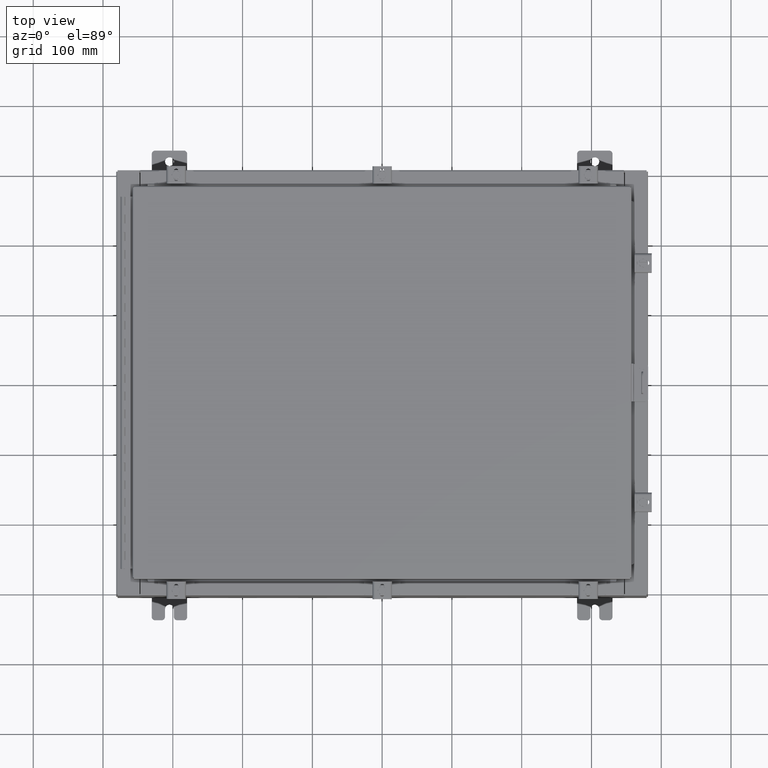
[diagram: clean part render]
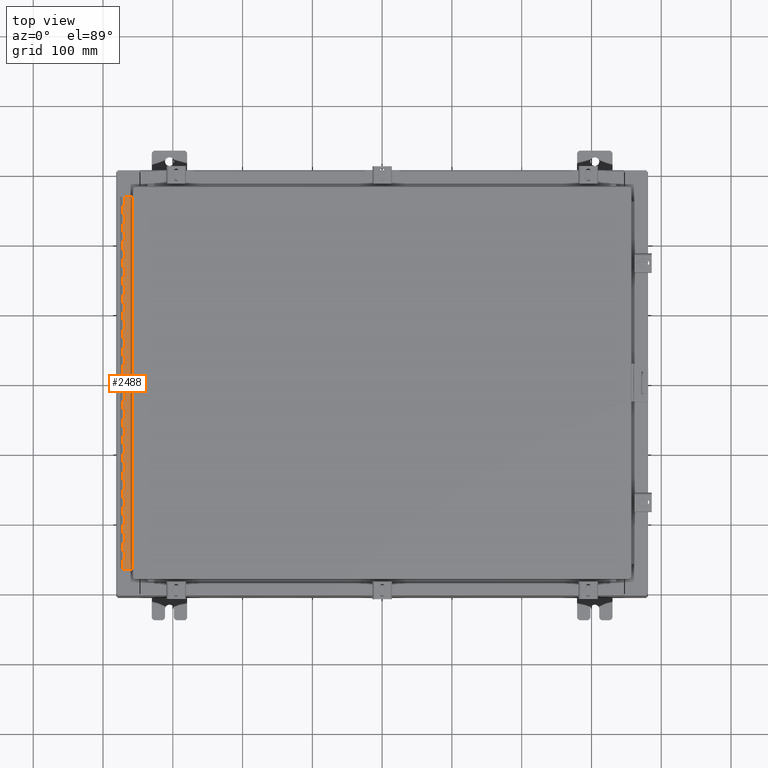
[diagram: same view with one face highlighted and labeled with its STEP entity id]
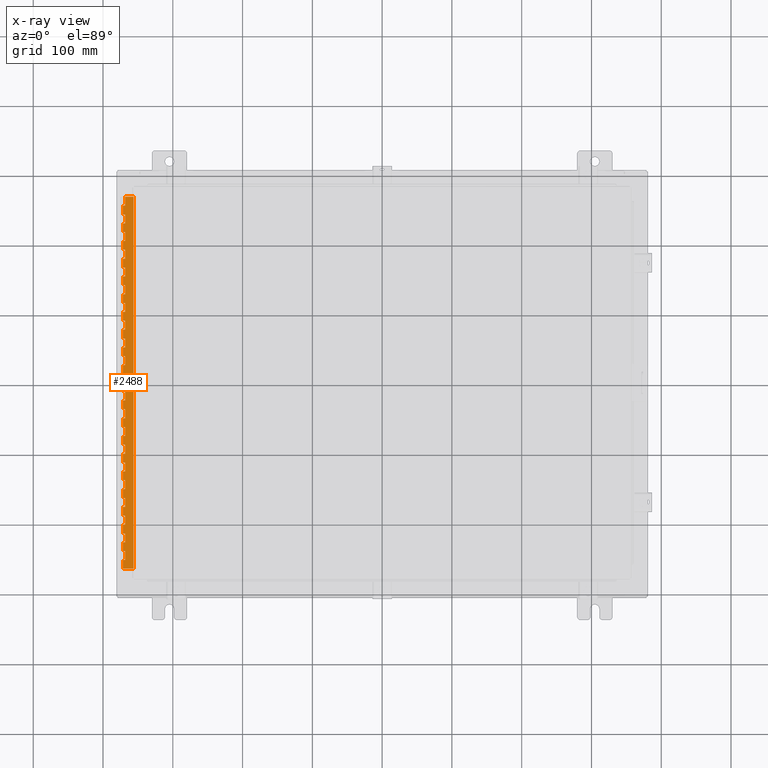
[diagram: x-ray of the same camera — body ghosted, the highlighted face saturated]
A machine part, top view. The second image highlights one B-rep face of the part: STEP entity #2488.
The next image is the same camera in x-ray: the body ghosted, the highlighted face saturated — about 0% of this face is hidden behind the body in this view.
In plain terms, the highlighted planar face has unit normal (-0, -0, 1).
Its self-contained STEP definition (entity closure, byte-faithful):
#34 = EDGE_CURVE ( 'NONE', #9324, #26235, #4822, .T. ) ;
#79 = DIRECTION ( 'NONE',  ( 1.000000000000000000, -3.369016658928438000E-015, -3.141885074075547100E-027 ) ) ;
#94 = VERTEX_POINT ( 'NONE', #604 ) ;
#155 = LINE ( 'NONE', #13174, #24912 ) ;
#216 = VERTEX_POINT ( 'NONE', #19144 ) ;
#232 = VERTEX_POINT ( 'NONE', #11434 ) ;
#234 = VERTEX_POINT ( 'NONE', #13741 ) ;
#254 = DIRECTION ( 'NONE',  ( 3.141885074075567200E-027, -3.229027700200096800E-028, -1.000000000000000000 ) ) ;
#404 = ORIENTED_EDGE ( 'NONE', *, *, #8666, .F. ) ;
#601 = ORIENTED_EDGE ( 'NONE', *, *, #1737, .F. ) ;
#604 = CARTESIAN_POINT ( 'NONE',  ( -0.6870000000000030500, 0.6755000000000095400, -17.99999999999997500 ) ) ;
#626 = VERTEX_POINT ( 'NONE', #18182 ) ;
#638 = VECTOR ( 'NONE', #22217, 39.37007874015748100 ) ;
#688 = EDGE_CURVE ( 'NONE', #9146, #26230, #20372, .T. ) ;
#714 = LINE ( 'NONE', #15290, #27082 ) ;
#715 = LINE ( 'NONE', #15933, #27083 ) ;
#734 = EDGE_CURVE ( 'NONE', #4343, #234, #18745, .T. ) ;
#797 = VECTOR ( 'NONE', #6239, 39.37007874015748100 ) ;
#811 = EDGE_CURVE ( 'NONE', #1770, #19089, #29885, .T. ) ;
#848 = CARTESIAN_POINT ( 'NONE',  ( -0.6870000000000030500, 0.5505000000000011000, -5.499999999999997300 ) ) ;
#867 = VERTEX_POINT ( 'NONE', #26609 ) ;
#927 = DIRECTION ( 'NONE',  ( 3.389037039080763700E-015, 1.000000000000000000, 3.228837380264321300E-028 ) ) ;
#952 = DIRECTION ( 'NONE',  ( -3.141885074075567200E-027, 3.229027700200096800E-028, 1.000000000000000000 ) ) ;
#1015 = CARTESIAN_POINT ( 'NONE',  ( -0.6869999999999976100, 0.8005000000000088700, -14.49999999999997700 ) ) ;
#1035 = VERTEX_POINT ( 'NONE', #11903 ) ;
#1115 = DIRECTION ( 'NONE',  ( -3.389037039080763700E-015, -1.000000000000000000, -3.228837380264321300E-028 ) ) ;
#1255 = VECTOR ( 'NONE', #16285, 39.37007874015748100 ) ;
#1258 = CARTESIAN_POINT ( 'NONE',  ( -0.6869999999999987200, 0.5505000000000011000, -7.999999999999989300 ) ) ;
#1400 = VERTEX_POINT ( 'NONE', #6035 ) ;
#1437 = EDGE_CURVE ( 'NONE', #24089, #5670, #9536, .T. ) ;
#1440 = EDGE_CURVE ( 'NONE', #14650, #1400, #16327, .T. ) ;
#1446 = LINE ( 'NONE', #32276, #638 ) ;
#1457 = EDGE_CURVE ( 'NONE', #29400, #13477, #20716, .T. ) ;
#1568 = LINE ( 'NONE', #14814, #21982 ) ;
#1610 = DIRECTION ( 'NONE',  ( -3.389037039080763700E-015, -1.000000000000000000, -3.228837380264321300E-028 ) ) ;
#1624 = ORIENTED_EDGE ( 'NONE', *, *, #28291, .F. ) ;
#1684 = VERTEX_POINT ( 'NONE', #25036 ) ;
#1697 = VECTOR ( 'NONE', #7319, 39.37007874015748100 ) ;
#1737 = EDGE_CURVE ( 'NONE', #16840, #10994, #20312, .T. ) ;
#1770 = VERTEX_POINT ( 'NONE', #4938 ) ;
#1781 = ORIENTED_EDGE ( 'NONE', *, *, #17635, .T. ) ;
#1808 = ORIENTED_EDGE ( 'NONE', *, *, #688, .F. ) ;
#1812 = CARTESIAN_POINT ( 'NONE',  ( -0.6869999999999987200, 0.5504999999999989900, -1.999999999999998400 ) ) ;
#1859 = CARTESIAN_POINT ( 'NONE',  ( -0.6869999999999987200, 0.8005000000000088700, -13.49999999999997900 ) ) ;
#1961 = VECTOR ( 'NONE', #27001, 39.37007874015748100 ) ;
#1971 = VECTOR ( 'NONE', #22402, 39.37007874015748100 ) ;
#1974 = CARTESIAN_POINT ( 'NONE',  ( -0.6869999999999976100, 0.8005000000000109800, -17.99999999999997500 ) ) ;
#2078 = CARTESIAN_POINT ( 'NONE',  ( -0.6869999999999976100, 0.8005000000000088700, -13.99999999999997700 ) ) ;
#2118 = EDGE_CURVE ( 'NONE', #8045, #18636, #15873, .T. ) ;
#2175 = ORIENTED_EDGE ( 'NONE', *, *, #21825, .F. ) ;
#2439 = VECTOR ( 'NONE', #15107, 39.37007874015748100 ) ;
#2488 = ADVANCED_FACE ( 'NONE', ( #19047 ), #15395, .T. ) ;
#2547 = VERTEX_POINT ( 'NONE', #10893 ) ;
#2750 = LINE ( 'NONE', #26872, #1961 ) ;
#2754 = VECTOR ( 'NONE', #927, 39.37007874015748100 ) ;
#2797 = LINE ( 'NONE', #6899, #22401 ) ;
#2821 = EDGE_CURVE ( 'NONE', #11160, #4188, #25314, .T. ) ;
#2841 = LINE ( 'NONE', #27069, #17271 ) ;
#2867 = CARTESIAN_POINT ( 'NONE',  ( -0.6870000000000041600, 0.5505000000000098700, -17.99999999999997500 ) ) ;
#2927 = VECTOR ( 'NONE', #1610, 39.37007874015748100 ) ;
#2970 = ORIENTED_EDGE ( 'NONE', *, *, #6097, .F. ) ;
#3030 = EDGE_CURVE ( 'NONE', #31472, #1770, #7721, .T. ) ;
#3083 = EDGE_CURVE ( 'NONE', #25766, #1684, #13717, .T. ) ;
#3180 = DIRECTION ( 'NONE',  ( 3.389037039080763700E-015, 1.000000000000000000, 3.228837380264321300E-028 ) ) ;
#3262 = LINE ( 'NONE', #9999, #9263 ) ;
#3383 = CARTESIAN_POINT ( 'NONE',  ( -0.6869999999999976100, 0.6755000000000095400, -20.99999999999995700 ) ) ;
#3389 = ORIENTED_EDGE ( 'NONE', *, *, #28763, .F. ) ;
#3396 = CARTESIAN_POINT ( 'NONE',  ( -0.6869999999999976100, 0.6755000000000095400, -20.99999999999995700 ) ) ;
#3445 = CARTESIAN_POINT ( 'NONE',  ( -0.6870000000000041600, 0.5505000000000011000, -8.499999999999989300 ) ) ;
#3474 = CARTESIAN_POINT ( 'NONE',  ( -0.6869999999999987200, 0.5505000000000011000, -5.999999999999990200 ) ) ;
#3475 = VERTEX_POINT ( 'NONE', #22207 ) ;
#3569 = CARTESIAN_POINT ( 'NONE',  ( -0.6869999999999987200, 0.5505000000000098700, -15.49999999999997900 ) ) ;
#3576 = EDGE_CURVE ( 'NONE', #1400, #11372, #8476, .T. ) ;
#3912 = VECTOR ( 'NONE', #32314, 39.37007874015748100 ) ;
#3915 = VECTOR ( 'NONE', #12338, 39.37007874015748100 ) ;
#3970 = CARTESIAN_POINT ( 'NONE',  ( -0.6869999999999976100, 0.8005000000000001000, -5.499999999999997300 ) ) ;
#4019 = EDGE_CURVE ( 'NONE', #19698, #29426, #24445, .T. ) ;
#4112 = CARTESIAN_POINT ( 'NONE',  ( -0.6869999999999998300, 0.5505000000000098700, -19.49999999999997900 ) ) ;
#4158 = EDGE_CURVE ( 'NONE', #10605, #8533, #32350, .T. ) ;
#4176 = CARTESIAN_POINT ( 'NONE',  ( -0.6869999999999987200, 0.5505000000000098700, -20.99999999999995700 ) ) ;
#4188 = VERTEX_POINT ( 'NONE', #24943 ) ;
#4343 = VERTEX_POINT ( 'NONE', #23045 ) ;
#4347 = CARTESIAN_POINT ( 'NONE',  ( -0.6870000000000030500, 0.5505000000000033200, -13.49999999999997900 ) ) ;
#4447 = DIRECTION ( 'NONE',  ( 3.389037039080763700E-015, 1.000000000000000000, 3.228837380264321300E-028 ) ) ;
#4493 = ORIENTED_EDGE ( 'NONE', *, *, #4019, .F. ) ;
#4704 = VERTEX_POINT ( 'NONE', #23115 ) ;
#4706 = LINE ( 'NONE', #18222, #16684 ) ;
#4790 = DIRECTION ( 'NONE',  ( -3.389037039080763700E-015, -1.000000000000000000, -3.228837380264321300E-028 ) ) ;
#4822 = LINE ( 'NONE', #28487, #11588 ) ;
#4831 = DIRECTION ( 'NONE',  ( 3.389037039080763700E-015, 1.000000000000000000, 3.228837380264321300E-028 ) ) ;
#4868 = LINE ( 'NONE', #8515, #18448 ) ;
#4892 = CARTESIAN_POINT ( 'NONE',  ( -0.6869999999999998300, 0.5505000000000098700, -19.99999999999995700 ) ) ;
#4898 = ORIENTED_EDGE ( 'NONE', *, *, #15754, .T. ) ;
#4906 = DIRECTION ( 'NONE',  ( -3.389037039080763700E-015, -1.000000000000000000, -3.228837380264321300E-028 ) ) ;
#4938 = CARTESIAN_POINT ( 'NONE',  ( -0.6869999999999987200, 0.5505000000000098700, -16.99999999999997900 ) ) ;
#4975 = ORIENTED_EDGE ( 'NONE', *, *, #8312, .F. ) ;
#4978 = LINE ( 'NONE', #23288, #31254 ) ;
#4997 = LINE ( 'NONE', #3569, #24557 ) ;
#5007 = VERTEX_POINT ( 'NONE', #22983 ) ;
#5025 = CARTESIAN_POINT ( 'NONE',  ( -0.6869999999999987200, 0.6755000000000095400, -19.49999999999997900 ) ) ;
#5042 = ORIENTED_EDGE ( 'NONE', *, *, #34, .T. ) ;
#5064 = CARTESIAN_POINT ( 'NONE',  ( -0.6869999999999987200, 0.5505000000000098700, -15.49999999999997900 ) ) ;
#5072 = VERTEX_POINT ( 'NONE', #28189 ) ;
#5168 = VECTOR ( 'NONE', #3180, 39.37007874015748100 ) ;
#5203 = VERTEX_POINT ( 'NONE', #5875 ) ;
#5245 = DIRECTION ( 'NONE',  ( 3.389037039080763700E-015, 1.000000000000000000, 3.228837380264321300E-028 ) ) ;
#5343 = DIRECTION ( 'NONE',  ( 3.141885074075567200E-027, -3.229027700200096800E-028, -1.000000000000000000 ) ) ;
#5432 = ORIENTED_EDGE ( 'NONE', *, *, #16286, .F. ) ;
#5468 = ORIENTED_EDGE ( 'NONE', *, *, #24196, .F. ) ;
#5503 = EDGE_CURVE ( 'NONE', #27172, #6936, #1568, .T. ) ;
#5504 = LINE ( 'NONE', #5829, #31802 ) ;
#5594 = VECTOR ( 'NONE', #9828, 39.37007874015748100 ) ;
#5630 = VECTOR ( 'NONE', #13880, 39.37007874015748100 ) ;
#5631 = DIRECTION ( 'NONE',  ( 3.141885074075567200E-027, -3.229027700200096800E-028, -1.000000000000000000 ) ) ;
#5639 = ORIENTED_EDGE ( 'NONE', *, *, #8580, .F. ) ;
#5649 = ORIENTED_EDGE ( 'NONE', *, *, #5503, .F. ) ;
#5670 = VERTEX_POINT ( 'NONE', #10327 ) ;
#5692 = DIRECTION ( 'NONE',  ( 3.141885074075567200E-027, -3.229027700200096800E-028, -1.000000000000000000 ) ) ;
#5703 = VECTOR ( 'NONE', #13069, 39.37007874015748100 ) ;
#5799 = LINE ( 'NONE', #12096, #18602 ) ;
#5822 = ORIENTED_EDGE ( 'NONE', *, *, #21413, .F. ) ;
#5829 = CARTESIAN_POINT ( 'NONE',  ( -0.6870000000000019400, 0.8005000000000109800, -17.49999999999997500 ) ) ;
#5875 = CARTESIAN_POINT ( 'NONE',  ( -0.6869999999999987200, 0.6755000000000095400, -14.49999999999997700 ) ) ;
#5907 = CARTESIAN_POINT ( 'NONE',  ( -0.6870000000000030500, 0.5505000000000011000, -3.999999999999996900 ) ) ;
#5913 = EDGE_CURVE ( 'NONE', #5203, #626, #31060, .T. ) ;
#5965 = DIRECTION ( 'NONE',  ( -3.389037039080763700E-015, -1.000000000000000000, -3.228837380264321300E-028 ) ) ;
#6027 = ORIENTED_EDGE ( 'NONE', *, *, #29920, .T. ) ;
#6035 = CARTESIAN_POINT ( 'NONE',  ( -0.6870000000000030500, 0.5505000000000033200, -13.99999999999997700 ) ) ;
#6097 = EDGE_CURVE ( 'NONE', #11986, #31472, #6728, .T. ) ;
#6150 = DIRECTION ( 'NONE',  ( 3.389037039080763700E-015, 1.000000000000000000, 3.228837380264321300E-028 ) ) ;
#6205 = ORIENTED_EDGE ( 'NONE', *, *, #15177, .T. ) ;
#6227 = CARTESIAN_POINT ( 'NONE',  ( -0.6869999999999998300, 0.6755000000000007700, -4.499999999999998200 ) ) ;
#6239 = DIRECTION ( 'NONE',  ( 3.389037039080763700E-015, 1.000000000000000000, 3.228837380264321300E-028 ) ) ;
#6276 = DIRECTION ( 'NONE',  ( -3.141885074075567200E-027, 3.229027700200096800E-028, 1.000000000000000000 ) ) ;
#6378 = CARTESIAN_POINT ( 'NONE',  ( -0.6869999999999987200, 0.5505000000000098700, -20.49999999999995700 ) ) ;
#6420 = DIRECTION ( 'NONE',  ( -3.141885074075567200E-027, 3.229027700200096800E-028, 1.000000000000000000 ) ) ;
#6422 = VERTEX_POINT ( 'NONE', #27720 ) ;
#6601 = VERTEX_POINT ( 'NONE', #15661 ) ;
#6712 = LINE ( 'NONE', #13253, #11113 ) ;
#6728 = LINE ( 'NONE', #27243, #19547 ) ;
#6832 = CARTESIAN_POINT ( 'NONE',  ( -0.6870000000000030500, 0.5504999999999989900, -0.4999999999999973900 ) ) ;
#6834 = CARTESIAN_POINT ( 'NONE',  ( -0.6870000000000030500, 0.8005000000000001000, -6.999999999999990200 ) ) ;
#6899 = CARTESIAN_POINT ( 'NONE',  ( -0.6869999999999987200, 0.8005000000000001000, -3.999999999999996900 ) ) ;
#6934 = LINE ( 'NONE', #8839, #25716 ) ;
#6936 = VERTEX_POINT ( 'NONE', #14532 ) ;
#6959 = DIRECTION ( 'NONE',  ( -3.389037039080763700E-015, -1.000000000000000000, -3.228837380264321300E-028 ) ) ;
#7063 = CARTESIAN_POINT ( 'NONE',  ( -0.6870000000000030500, 0.5505000000000011000, -5.000000000000000000 ) ) ;
#7145 = EDGE_CURVE ( 'NONE', #626, #24089, #17512, .T. ) ;
#7240 = LINE ( 'NONE', #26034, #13246 ) ;
#7248 = ORIENTED_EDGE ( 'NONE', *, *, #7145, .F. ) ;
#7262 = CARTESIAN_POINT ( 'NONE',  ( -0.6870000000000074900, -0.6245000000000002800, -20.99999999999995700 ) ) ;
#7319 = DIRECTION ( 'NONE',  ( 3.389037039080763700E-015, 1.000000000000000000, 3.228837380264321300E-028 ) ) ;
#7358 = VERTEX_POINT ( 'NONE', #16989 ) ;
#7373 = CARTESIAN_POINT ( 'NONE',  ( -0.6869999999999976100, 0.8005000000000001000, -5.999999999999990200 ) ) ;
#7423 = DIRECTION ( 'NONE',  ( 3.389037039080763700E-015, 1.000000000000000000, 3.228837380264321300E-028 ) ) ;
#7533 = LINE ( 'NONE', #8835, #33032 ) ;
#7623 = CARTESIAN_POINT ( 'NONE',  ( -0.6869999999999987200, 0.5505000000000011000, -3.000000000000001800 ) ) ;
#7689 = EDGE_CURVE ( 'NONE', #20051, #94, #28582, .T. ) ;
#7721 = LINE ( 'NONE', #30603, #21319 ) ;
#7917 = CARTESIAN_POINT ( 'NONE',  ( -0.6870000000000030500, 0.5505000000000011000, -4.499999999999998200 ) ) ;
#7936 = VECTOR ( 'NONE', #32191, 39.37007874015748100 ) ;
#7941 = CARTESIAN_POINT ( 'NONE',  ( -0.6869999999999987200, 0.5505000000000011000, -11.49999999999997700 ) ) ;
#8045 = VERTEX_POINT ( 'NONE', #23925 ) ;
#8121 = DIRECTION ( 'NONE',  ( -3.141885074075567200E-027, 3.229027700200096800E-028, 1.000000000000000000 ) ) ;
#8173 = ORIENTED_EDGE ( 'NONE', *, *, #9710, .F. ) ;
#8200 = CARTESIAN_POINT ( 'NONE',  ( -0.6870000000000030500, 0.8005000000000088700, -10.99999999999997700 ) ) ;
#8220 = DIRECTION ( 'NONE',  ( -3.141885074075567200E-027, 3.229027700200096800E-028, 1.000000000000000000 ) ) ;
#8244 = VERTEX_POINT ( 'NONE', #4176 ) ;
#8312 = EDGE_CURVE ( 'NONE', #32465, #4343, #5799, .T. ) ;
#8327 = DIRECTION ( 'NONE',  ( -3.389037039080763700E-015, -1.000000000000000000, -3.228837380264321300E-028 ) ) ;
#8378 = ORIENTED_EDGE ( 'NONE', *, *, #31934, .F. ) ;
#8476 = LINE ( 'NONE', #2078, #1697 ) ;
#8501 = CARTESIAN_POINT ( 'NONE',  ( -0.6870000000000030500, 0.5504999999999989900, -0.4999999999999973900 ) ) ;
#8515 = CARTESIAN_POINT ( 'NONE',  ( -0.6870000000000041600, 0.5505000000000011000, -3.499999999999999100 ) ) ;
#8533 = VERTEX_POINT ( 'NONE', #15451 ) ;
#8580 = EDGE_CURVE ( 'NONE', #1684, #27750, #12999, .T. ) ;
#8615 = CARTESIAN_POINT ( 'NONE',  ( -0.6870000000000041600, 0.5505000000000098700, -17.49999999999997500 ) ) ;
#8616 = VERTEX_POINT ( 'NONE', #13093 ) ;
#8666 = EDGE_CURVE ( 'NONE', #25545, #8244, #10585, .T. ) ;
#8694 = VECTOR ( 'NONE', #25150, 39.37007874015748100 ) ;
#8697 = VECTOR ( 'NONE', #1115, 39.37007874015748100 ) ;
#8727 = CARTESIAN_POINT ( 'NONE',  ( -0.6870000000000030500, 0.5505000000000033200, -13.49999999999997900 ) ) ;
#8820 = EDGE_CURVE ( 'NONE', #23798, #21541, #4997, .T. ) ;
#8835 = CARTESIAN_POINT ( 'NONE',  ( -0.6869999999999976100, 0.6755000000000095400, -20.99999999999995700 ) ) ;
#8839 = CARTESIAN_POINT ( 'NONE',  ( -0.6869999999999976100, 0.6755000000000095400, -20.99999999999995700 ) ) ;
#8861 = CARTESIAN_POINT ( 'NONE',  ( -0.6869999999999976100, 0.6755000000000007700, -6.499999999999988500 ) ) ;
#8903 = ORIENTED_EDGE ( 'NONE', *, *, #4158, .T. ) ;
#8935 = VERTEX_POINT ( 'NONE', #14197 ) ;
#9032 = VERTEX_POINT ( 'NONE', #24790 ) ;
#9146 = VERTEX_POINT ( 'NONE', #32735 ) ;
#9158 = EDGE_CURVE ( 'NONE', #18514, #9032, #30875, .T. ) ;
#9234 = LINE ( 'NONE', #30338, #2439 ) ;
#9263 = VECTOR ( 'NONE', #7423, 39.37007874015748100 ) ;
#9324 = VERTEX_POINT ( 'NONE', #25870 ) ;
#9390 = VECTOR ( 'NONE', #5343, 39.37007874015748100 ) ;
#9462 = ORIENTED_EDGE ( 'NONE', *, *, #25959, .F. ) ;
#9536 = LINE ( 'NONE', #24007, #15525 ) ;
#9583 = LINE ( 'NONE', #31497, #29080 ) ;
#9665 = VERTEX_POINT ( 'NONE', #14477 ) ;
#9676 = DIRECTION ( 'NONE',  ( 3.389037039080763700E-015, 1.000000000000000000, 3.228837380264321300E-028 ) ) ;
#9677 = CARTESIAN_POINT ( 'NONE',  ( -0.6870000000000030500, 0.8005000000000109800, -20.49999999999995700 ) ) ;
#9710 = EDGE_CURVE ( 'NONE', #18514, #25545, #20900, .T. ) ;
#9719 = LINE ( 'NONE', #17577, #22513 ) ;
#9742 = LINE ( 'NONE', #32151, #2927 ) ;
#9748 = ORIENTED_EDGE ( 'NONE', *, *, #19203, .T. ) ;
#9828 = DIRECTION ( 'NONE',  ( -3.141885074075567200E-027, 3.229027700200096800E-028, 1.000000000000000000 ) ) ;
#9929 = DIRECTION ( 'NONE',  ( -3.389037039080763700E-015, -1.000000000000000000, -3.228837380264321300E-028 ) ) ;
#9999 = CARTESIAN_POINT ( 'NONE',  ( -0.6869999999999976100, 0.8005000000000109800, -18.99999999999997900 ) ) ;
#10045 = EDGE_CURVE ( 'NONE', #27172, #31296, #28883, .T. ) ;
#10152 = EDGE_CURVE ( 'NONE', #29400, #10994, #6934, .T. ) ;
#10254 = CARTESIAN_POINT ( 'NONE',  ( -0.6870000000000074900, -0.6245000000000002800, -20.99999999999995700 ) ) ;
#10320 = CARTESIAN_POINT ( 'NONE',  ( -0.6870000000000030500, 0.8005000000000088700, -11.49999999999997700 ) ) ;
#10327 = CARTESIAN_POINT ( 'NONE',  ( -0.6869999999999976100, 0.6755000000000095400, -14.99999999999997700 ) ) ;
#10347 = VECTOR ( 'NONE', #15875, 39.37007874015748100 ) ;
#10575 = VERTEX_POINT ( 'NONE', #1812 ) ;
#10585 = LINE ( 'NONE', #21015, #17414 ) ;
#10591 = AXIS2_PLACEMENT_3D ( 'NONE', #10254, #79, #17982 ) ;
#10605 = VERTEX_POINT ( 'NONE', #12199 ) ;
#10632 = DIRECTION ( 'NONE',  ( -3.141885074075567200E-027, 3.229027700200096800E-028, 1.000000000000000000 ) ) ;
#10686 = EDGE_CURVE ( 'NONE', #19464, #24665, #9719, .T. ) ;
#10689 = VECTOR ( 'NONE', #31186, 39.37007874015748100 ) ;
#10702 = CARTESIAN_POINT ( 'NONE',  ( -0.6870000000000030500, 0.5505000000000098700, -18.99999999999997900 ) ) ;
#10709 = LINE ( 'NONE', #32572, #3915 ) ;
#10806 = EDGE_CURVE ( 'NONE', #8935, #27364, #32795, .T. ) ;
#10809 = VECTOR ( 'NONE', #10632, 39.37007874015748100 ) ;
#10893 = CARTESIAN_POINT ( 'NONE',  ( -0.6869999999999987200, 0.6755000000000095400, -18.99999999999997900 ) ) ;
#10994 = VERTEX_POINT ( 'NONE', #13504 ) ;
#11042 = ORIENTED_EDGE ( 'NONE', *, *, #22184, .F. ) ;
#11087 = EDGE_CURVE ( 'NONE', #17381, #232, #32379, .T. ) ;
#11101 = DIRECTION ( 'NONE',  ( -3.141885074075567200E-027, 3.229027700200096800E-028, 1.000000000000000000 ) ) ;
#11113 = VECTOR ( 'NONE', #8220, 39.37007874015748100 ) ;
#11160 = VERTEX_POINT ( 'NONE', #26852 ) ;
#11311 = VECTOR ( 'NONE', #5965, 39.37007874015748100 ) ;
#11372 = VERTEX_POINT ( 'NONE', #22672 ) ;
#11434 = CARTESIAN_POINT ( 'NONE',  ( -0.6870000000000030500, 0.6755000000000095400, -12.99999999999997700 ) ) ;
#11458 = VERTEX_POINT ( 'NONE', #4892 ) ;
#11478 = CARTESIAN_POINT ( 'NONE',  ( -0.6869999999999998300, 0.07550000000000989300, -20.99999999999995700 ) ) ;
#11494 = LINE ( 'NONE', #17139, #3912 ) ;
#11576 = LINE ( 'NONE', #3970, #23547 ) ;
#11588 = VECTOR ( 'NONE', #20181, 39.37007874015748100 ) ;
#11608 = LINE ( 'NONE', #25901, #10809 ) ;
#11630 = CARTESIAN_POINT ( 'NONE',  ( -0.6869999999999976100, 0.8005000000000001000, -5.000000000000000000 ) ) ;
#11777 = EDGE_CURVE ( 'NONE', #27643, #19698, #2841, .T. ) ;
#11855 = LINE ( 'NONE', #22669, #17874 ) ;
#11903 = CARTESIAN_POINT ( 'NONE',  ( -0.6869999999999987200, 0.5504999999999989900, -1.500000000000000900 ) ) ;
#11958 = EDGE_CURVE ( 'NONE', #27750, #27274, #17660, .T. ) ;
#11986 = VERTEX_POINT ( 'NONE', #16560 ) ;
#12096 = CARTESIAN_POINT ( 'NONE',  ( -0.6869999999999998300, 0.5505000000000011000, -10.49999999999997900 ) ) ;
#12129 = ORIENTED_EDGE ( 'NONE', *, *, #9158, .T. ) ;
#12169 = VERTEX_POINT ( 'NONE', #17348 ) ;
#12199 = CARTESIAN_POINT ( 'NONE',  ( -0.6870000000000030500, 0.6755000000000007700, -3.499999999999999100 ) ) ;
#12230 = ORIENTED_EDGE ( 'NONE', *, *, #24519, .F. ) ;
#12235 = ORIENTED_EDGE ( 'NONE', *, *, #18851, .T. ) ;
#12257 = ORIENTED_EDGE ( 'NONE', *, *, #27629, .F. ) ;
#12338 = DIRECTION ( 'NONE',  ( -3.141885074075567200E-027, 3.229027700200096800E-028, 1.000000000000000000 ) ) ;
#12504 = VECTOR ( 'NONE', #5245, 39.37007874015748100 ) ;
#12543 = CARTESIAN_POINT ( 'NONE',  ( -0.6870000000000030500, 0.8005000000000088700, -15.49999999999997900 ) ) ;
#12773 = LINE ( 'NONE', #21276, #11311 ) ;
#12791 = EDGE_CURVE ( 'NONE', #10605, #26896, #20773, .T. ) ;
#12840 = CARTESIAN_POINT ( 'NONE',  ( -0.6869999999999976100, 0.6755000000000095400, -20.99999999999995700 ) ) ;
#12961 = VERTEX_POINT ( 'NONE', #25848 ) ;
#12986 = ORIENTED_EDGE ( 'NONE', *, *, #10045, .T. ) ;
#12999 = LINE ( 'NONE', #7941, #18983 ) ;
#13059 = EDGE_CURVE ( 'NONE', #25658, #19464, #12773, .T. ) ;
#13069 = DIRECTION ( 'NONE',  ( 3.141885074075567200E-027, -3.229027700200096800E-028, -1.000000000000000000 ) ) ;
#13093 = CARTESIAN_POINT ( 'NONE',  ( -0.6869999999999998300, 0.5505000000000098700, -19.49999999999997900 ) ) ;
#13149 = DIRECTION ( 'NONE',  ( -3.141885074075567200E-027, 3.229027700200096800E-028, 1.000000000000000000 ) ) ;
#13174 = CARTESIAN_POINT ( 'NONE',  ( -0.6869999999999976100, 0.6755000000000095400, -20.99999999999995700 ) ) ;
#13225 = CARTESIAN_POINT ( 'NONE',  ( -0.6869999999999976100, 0.6755000000000095400, -15.49999999999997900 ) ) ;
#13246 = VECTOR ( 'NONE', #13337, 39.37007874015748100 ) ;
#13253 = CARTESIAN_POINT ( 'NONE',  ( -0.6869999999999976100, 0.6755000000000095400, -20.99999999999995700 ) ) ;
#13280 = ORIENTED_EDGE ( 'NONE', *, *, #21693, .F. ) ;
#13287 = CARTESIAN_POINT ( 'NONE',  ( -0.6869999999999987200, 0.5504999999999989900, -1.500000000000000900 ) ) ;
#13337 = DIRECTION ( 'NONE',  ( -3.141885074075567200E-027, 3.229027700200096800E-028, 1.000000000000000000 ) ) ;
#13477 = VERTEX_POINT ( 'NONE', #22166 ) ;
#13492 = VECTOR ( 'NONE', #4831, 39.37007874015748100 ) ;
#13504 = CARTESIAN_POINT ( 'NONE',  ( -0.6869999999999976100, 0.6755000000000007700, -5.999999999999990200 ) ) ;
#13563 = CARTESIAN_POINT ( 'NONE',  ( -0.6869999999999976100, 0.6755000000000095400, -20.99999999999995700 ) ) ;
#13637 = ORIENTED_EDGE ( 'NONE', *, *, #3083, .F. ) ;
#13668 = ORIENTED_EDGE ( 'NONE', *, *, #7689, .F. ) ;
#13717 = LINE ( 'NONE', #10320, #26467 ) ;
#13741 = CARTESIAN_POINT ( 'NONE',  ( -0.6869999999999976100, 0.6755000000000095400, -10.99999999999997700 ) ) ;
#13813 = CARTESIAN_POINT ( 'NONE',  ( -0.6869999999999987200, 0.6755000000000007700, 0.0000000000000000000 ) ) ;
#13880 = DIRECTION ( 'NONE',  ( 3.389037039080763700E-015, 1.000000000000000000, 3.228837380264321300E-028 ) ) ;
#13884 = CARTESIAN_POINT ( 'NONE',  ( -0.6869999999999976100, 0.8005000000000023200, -10.49999999999997900 ) ) ;
#13931 = EDGE_CURVE ( 'NONE', #21541, #216, #29664, .T. ) ;
#13971 = CARTESIAN_POINT ( 'NONE',  ( -0.6869999999999987200, 0.5505000000000011000, -7.499999999999989300 ) ) ;
#13985 = CARTESIAN_POINT ( 'NONE',  ( -0.6870000000000030500, 0.8005000000000001000, -6.499999999999988500 ) ) ;
#14126 = LINE ( 'NONE', #23201, #5703 ) ;
#14197 = CARTESIAN_POINT ( 'NONE',  ( -0.6870000000000041600, 0.5505000000000011000, -8.999999999999987600 ) ) ;
#14284 = EDGE_CURVE ( 'NONE', #13477, #11160, #14126, .T. ) ;
#14356 = CARTESIAN_POINT ( 'NONE',  ( -0.6870000000000030500, 0.6755000000000095400, -16.99999999999997900 ) ) ;
#14392 = LINE ( 'NONE', #11630, #15986 ) ;
#14394 = ORIENTED_EDGE ( 'NONE', *, *, #11087, .F. ) ;
#14422 = ORIENTED_EDGE ( 'NONE', *, *, #31780, .F. ) ;
#14477 = CARTESIAN_POINT ( 'NONE',  ( -0.6869999999999998300, 0.5504999999999989900, -0.9999999999999992200 ) ) ;
#14532 = CARTESIAN_POINT ( 'NONE',  ( -0.6870000000000030500, 0.5505000000000011000, -4.499999999999998200 ) ) ;
#14540 = ORIENTED_EDGE ( 'NONE', *, *, #1457, .F. ) ;
#14586 = ORIENTED_EDGE ( 'NONE', *, *, #11958, .F. ) ;
#14602 = ORIENTED_EDGE ( 'NONE', *, *, #12791, .F. ) ;
#14650 = VERTEX_POINT ( 'NONE', #4347 ) ;
#14696 = DIRECTION ( 'NONE',  ( -3.141885074075567200E-027, 3.229027700200096800E-028, 1.000000000000000000 ) ) ;
#14814 = CARTESIAN_POINT ( 'NONE',  ( -0.6869999999999976100, 0.8005000000000001000, -4.499999999999998200 ) ) ;
#14820 = ORIENTED_EDGE ( 'NONE', *, *, #22071, .T. ) ;
#15001 = ORIENTED_EDGE ( 'NONE', *, *, #2118, .F. ) ;
#15107 = DIRECTION ( 'NONE',  ( 3.141885074075567200E-027, -3.229027700200096800E-028, -1.000000000000000000 ) ) ;
#15119 = DIRECTION ( 'NONE',  ( -3.389037039080763700E-015, -1.000000000000000000, -3.228837380264321300E-028 ) ) ;
#15177 = EDGE_CURVE ( 'NONE', #12169, #27364, #7240, .T. ) ;
#15252 = EDGE_CURVE ( 'NONE', #26896, #18191, #4868, .T. ) ;
#15290 = CARTESIAN_POINT ( 'NONE',  ( -0.6869999999999976100, 0.8005000000000023200, -9.499999999999989300 ) ) ;
#15353 = DIRECTION ( 'NONE',  ( 3.141885074075567200E-027, -3.229027700200096800E-028, -1.000000000000000000 ) ) ;
#15367 = VECTOR ( 'NONE', #11101, 39.37007874015748100 ) ;
#15395 = PLANE ( 'NONE',  #10591 ) ;
#15408 = DIRECTION ( 'NONE',  ( -3.389037039080763700E-015, -1.000000000000000000, -3.228837380264321300E-028 ) ) ;
#15427 = DIRECTION ( 'NONE',  ( -3.141885074075567200E-027, 3.229027700200096800E-028, 1.000000000000000000 ) ) ;
#15451 = CARTESIAN_POINT ( 'NONE',  ( -0.6870000000000030500, 0.6755000000000007700, -3.000000000000001800 ) ) ;
#15457 = CARTESIAN_POINT ( 'NONE',  ( -0.6869999999999987200, 0.6755000000000007700, -5.000000000000000000 ) ) ;
#15525 = VECTOR ( 'NONE', #6150, 39.37007874015748100 ) ;
#15598 = LINE ( 'NONE', #21642, #22407 ) ;
#15620 = LINE ( 'NONE', #25678, #20814 ) ;
#15661 = CARTESIAN_POINT ( 'NONE',  ( -0.6869999999999987200, 0.6755000000000007700, -0.4999999999999973900 ) ) ;
#15677 = ORIENTED_EDGE ( 'NONE', *, *, #23907, .T. ) ;
#15696 = ORIENTED_EDGE ( 'NONE', *, *, #26711, .F. ) ;
#15754 = EDGE_CURVE ( 'NONE', #25658, #94, #11608, .T. ) ;
#15873 = LINE ( 'NONE', #28973, #21886 ) ;
#15875 = DIRECTION ( 'NONE',  ( 3.141885074075567200E-027, -3.229027700200096800E-028, -1.000000000000000000 ) ) ;
#15933 = CARTESIAN_POINT ( 'NONE',  ( -0.6869999999999976100, 0.6755000000000095400, -20.99999999999995700 ) ) ;
#15955 = CARTESIAN_POINT ( 'NONE',  ( -0.6869999999999987200, 0.5505000000000098700, -15.99999999999997900 ) ) ;
#15971 = CARTESIAN_POINT ( 'NONE',  ( -0.6870000000000030500, 0.5505000000000098700, -14.49999999999997700 ) ) ;
#15986 = VECTOR ( 'NONE', #16796, 39.37007874015748100 ) ;
#16008 = VERTEX_POINT ( 'NONE', #27229 ) ;
#16041 = CARTESIAN_POINT ( 'NONE',  ( -0.6870000000000030500, 0.6755000000000095400, -12.49999999999997700 ) ) ;
#16043 = EDGE_CURVE ( 'NONE', #18191, #31296, #2797, .T. ) ;
#16177 = LINE ( 'NONE', #7917, #9390 ) ;
#16179 = ORIENTED_EDGE ( 'NONE', *, *, #24861, .T. ) ;
#16285 = DIRECTION ( 'NONE',  ( 3.389037039080763700E-015, 1.000000000000000000, 3.228837380264321300E-028 ) ) ;
#16286 = EDGE_CURVE ( 'NONE', #28463, #16008, #11576, .T. ) ;
#16327 = LINE ( 'NONE', #8727, #21514 ) ;
#16360 = VECTOR ( 'NONE', #6959, 39.37007874015748100 ) ;
#16400 = EDGE_CURVE ( 'NONE', #17680, #9665, #21174, .T. ) ;
#16489 = ORIENTED_EDGE ( 'NONE', *, *, #31609, .F. ) ;
#16500 = DIRECTION ( 'NONE',  ( 3.389037039080763700E-015, 1.000000000000000000, 3.228837380264321300E-028 ) ) ;
#16511 = VECTOR ( 'NONE', #19858, 39.37007874015748100 ) ;
#16512 = DIRECTION ( 'NONE',  ( 3.389037039080763700E-015, 1.000000000000000000, 3.228837380264321300E-028 ) ) ;
#16524 = LINE ( 'NONE', #3445, #31625 ) ;
#16560 = CARTESIAN_POINT ( 'NONE',  ( -0.6870000000000030500, 0.6755000000000095400, -16.49999999999997900 ) ) ;
#16684 = VECTOR ( 'NONE', #20768, 39.37007874015748100 ) ;
#16710 = DIRECTION ( 'NONE',  ( 3.141885074075567200E-027, -3.229027700200096800E-028, -1.000000000000000000 ) ) ;
#16715 = VECTOR ( 'NONE', #26446, 39.37007874015748100 ) ;
#16796 = DIRECTION ( 'NONE',  ( 3.389037039080763700E-015, 1.000000000000000000, 3.228837380264321300E-028 ) ) ;
#16840 = VERTEX_POINT ( 'NONE', #3474 ) ;
#16887 = ORIENTED_EDGE ( 'NONE', *, *, #16043, .F. ) ;
#16989 = CARTESIAN_POINT ( 'NONE',  ( -0.6869999999999976100, 0.6755000000000007700, -1.999999999999998400 ) ) ;
#17009 = ORIENTED_EDGE ( 'NONE', *, *, #2821, .F. ) ;
#17047 = CARTESIAN_POINT ( 'NONE',  ( -0.6869999999999987200, 0.6755000000000007700, -0.9999999999999992200 ) ) ;
#17139 = CARTESIAN_POINT ( 'NONE',  ( -0.6869999999999987200, 0.5505000000000011000, -12.49999999999997700 ) ) ;
#17143 = LINE ( 'NONE', #31271, #23103 ) ;
#17261 = CARTESIAN_POINT ( 'NONE',  ( -0.6869999999999976100, 0.6755000000000095400, -20.99999999999995700 ) ) ;
#17271 = VECTOR ( 'NONE', #17284, 39.37007874015748100 ) ;
#17276 = CARTESIAN_POINT ( 'NONE',  ( -0.6869999999999976100, 0.8005000000000023200, -9.999999999999978700 ) ) ;
#17284 = DIRECTION ( 'NONE',  ( -3.389037039080763700E-015, -1.000000000000000000, -3.228837380264321300E-028 ) ) ;
#17298 = CARTESIAN_POINT ( 'NONE',  ( -0.6869999999999976100, 0.6755000000000007700, -1.500000000000000900 ) ) ;
#17348 = CARTESIAN_POINT ( 'NONE',  ( -0.6869999999999987200, 0.6755000000000007700, -9.499999999999989300 ) ) ;
#17381 = VERTEX_POINT ( 'NONE', #20860 ) ;
#17414 = VECTOR ( 'NONE', #5692, 39.37007874015748100 ) ;
#17512 = LINE ( 'NONE', #15971, #10689 ) ;
#17548 = EDGE_CURVE ( 'NONE', #9665, #20567, #15598, .T. ) ;
#17577 = CARTESIAN_POINT ( 'NONE',  ( -0.6870000000000030500, 0.5505000000000098700, -18.49999999999997900 ) ) ;
#17635 = EDGE_CURVE ( 'NONE', #28463, #20825, #19996, .T. ) ;
#17653 = ORIENTED_EDGE ( 'NONE', *, *, #20310, .F. ) ;
#17660 = LINE ( 'NONE', #29101, #5630 ) ;
#17678 = EDGE_CURVE ( 'NONE', #29262, #27274, #25952, .T. ) ;
#17680 = VERTEX_POINT ( 'NONE', #8501 ) ;
#17825 = EDGE_CURVE ( 'NONE', #20625, #20825, #14392, .T. ) ;
#17874 = VECTOR ( 'NONE', #9929, 39.37007874015748100 ) ;
#17878 = CARTESIAN_POINT ( 'NONE',  ( -0.6870000000000041600, 0.5505000000000011000, -8.499999999999989300 ) ) ;
#17946 = LINE ( 'NONE', #13884, #8697 ) ;
#17982 = DIRECTION ( 'NONE',  ( 3.369016658928438000E-015, 1.000000000000000000, 3.228761118029215800E-028 ) ) ;
#18162 = ORIENTED_EDGE ( 'NONE', *, *, #32004, .F. ) ;
#18182 = CARTESIAN_POINT ( 'NONE',  ( -0.6870000000000030500, 0.5505000000000098700, -14.49999999999997700 ) ) ;
#18190 = ORIENTED_EDGE ( 'NONE', *, *, #15252, .F. ) ;
#18191 = VERTEX_POINT ( 'NONE', #5907 ) ;
#18222 = CARTESIAN_POINT ( 'NONE',  ( -0.6870000000000030500, 0.8005000000000001000, -3.000000000000001800 ) ) ;
#18231 = CARTESIAN_POINT ( 'NONE',  ( -0.6869999999999987200, 0.6755000000000007700, -5.499999999999997300 ) ) ;
#18282 = LINE ( 'NONE', #12840, #30992 ) ;
#18448 = VECTOR ( 'NONE', #23827, 39.37007874015748100 ) ;
#18514 = VERTEX_POINT ( 'NONE', #32623 ) ;
#18602 = VECTOR ( 'NONE', #22273, 39.37007874015748100 ) ;
#18636 = VERTEX_POINT ( 'NONE', #17878 ) ;
#18660 = VECTOR ( 'NONE', #28844, 39.37007874015748100 ) ;
#18697 = DIRECTION ( 'NONE',  ( -3.141885074075567200E-027, 3.229027700200096800E-028, 1.000000000000000000 ) ) ;
#18745 = LINE ( 'NONE', #8200, #5168 ) ;
#18747 = DIRECTION ( 'NONE',  ( 3.141885074075567200E-027, -3.229027700200096800E-028, -1.000000000000000000 ) ) ;
#18851 = EDGE_CURVE ( 'NONE', #29753, #5670, #715, .T. ) ;
#18945 = VECTOR ( 'NONE', #32854, 39.37007874015748100 ) ;
#18983 = VECTOR ( 'NONE', #254, 39.37007874015748100 ) ;
#19047 = FACE_OUTER_BOUND ( 'NONE', #26952, .T. ) ;
#19089 = VERTEX_POINT ( 'NONE', #14356 ) ;
#19102 = LINE ( 'NONE', #17261, #25092 ) ;
#19106 = CARTESIAN_POINT ( 'NONE',  ( -0.6870000000000030500, 0.6755000000000007700, -3.999999999999996900 ) ) ;
#19144 = CARTESIAN_POINT ( 'NONE',  ( -0.6869999999999976100, 0.6755000000000095400, -15.99999999999997900 ) ) ;
#19203 = EDGE_CURVE ( 'NONE', #31588, #2547, #19102, .T. ) ;
#19233 = EDGE_CURVE ( 'NONE', #6601, #24796, #10709, .T. ) ;
#19252 = CARTESIAN_POINT ( 'NONE',  ( -0.6869999999999987200, 0.5505000000000011000, -7.499999999999989300 ) ) ;
#19259 = DIRECTION ( 'NONE',  ( -3.389037039080763700E-015, -1.000000000000000000, -3.228837380264321300E-028 ) ) ;
#19274 = ORIENTED_EDGE ( 'NONE', *, *, #26557, .F. ) ;
#19434 = DIRECTION ( 'NONE',  ( 3.141885074075567200E-027, -3.229027700200096800E-028, -1.000000000000000000 ) ) ;
#19464 = VERTEX_POINT ( 'NONE', #20795 ) ;
#19524 = VECTOR ( 'NONE', #15119, 39.37007874015748100 ) ;
#19547 = VECTOR ( 'NONE', #29792, 39.37007874015748100 ) ;
#19662 = VECTOR ( 'NONE', #14696, 39.37007874015748100 ) ;
#19698 = VERTEX_POINT ( 'NONE', #13971 ) ;
#19843 = DIRECTION ( 'NONE',  ( -3.389037039080763700E-015, -1.000000000000000000, -3.228837380264321300E-028 ) ) ;
#19858 = DIRECTION ( 'NONE',  ( -3.389037039080763700E-015, -1.000000000000000000, -3.228837380264321300E-028 ) ) ;
#19996 = LINE ( 'NONE', #30204, #5594 ) ;
#20051 = VERTEX_POINT ( 'NONE', #2867 ) ;
#20164 = VECTOR ( 'NONE', #4447, 39.37007874015748100 ) ;
#20181 = DIRECTION ( 'NONE',  ( -3.141885074075567200E-027, 3.229027700200096800E-028, 1.000000000000000000 ) ) ;
#20222 = EDGE_CURVE ( 'NONE', #29262, #12961, #1446, .T. ) ;
#20310 = EDGE_CURVE ( 'NONE', #867, #9146, #11855, .T. ) ;
#20312 = LINE ( 'NONE', #7373, #13492 ) ;
#20334 = LINE ( 'NONE', #12543, #19524 ) ;
#20372 = LINE ( 'NONE', #31044, #32250 ) ;
#20440 = ORIENTED_EDGE ( 'NONE', *, *, #27785, .F. ) ;
#20567 = VERTEX_POINT ( 'NONE', #17047 ) ;
#20625 = VERTEX_POINT ( 'NONE', #7063 ) ;
#20670 = ORIENTED_EDGE ( 'NONE', *, *, #32430, .T. ) ;
#20716 = LINE ( 'NONE', #13985, #28255 ) ;
#20768 = DIRECTION ( 'NONE',  ( 3.389037039080763700E-015, 1.000000000000000000, 3.228837380264321300E-028 ) ) ;
#20773 = LINE ( 'NONE', #22668, #26733 ) ;
#20795 = CARTESIAN_POINT ( 'NONE',  ( -0.6870000000000030500, 0.5505000000000098700, -18.49999999999997900 ) ) ;
#20812 = ORIENTED_EDGE ( 'NONE', *, *, #8820, .F. ) ;
#20814 = VECTOR ( 'NONE', #28230, 39.37007874015748100 ) ;
#20825 = VERTEX_POINT ( 'NONE', #15457 ) ;
#20860 = CARTESIAN_POINT ( 'NONE',  ( -0.6870000000000041600, 0.5505000000000011000, -12.99999999999997700 ) ) ;
#20900 = LINE ( 'NONE', #9677, #16511 ) ;
#20944 = LINE ( 'NONE', #29854, #20164 ) ;
#20958 = ORIENTED_EDGE ( 'NONE', *, *, #17548, .F. ) ;
#21015 = CARTESIAN_POINT ( 'NONE',  ( -0.6869999999999987200, 0.5505000000000098700, -20.49999999999995700 ) ) ;
#21174 = LINE ( 'NONE', #6832, #27134 ) ;
#21196 = ORIENTED_EDGE ( 'NONE', *, *, #20222, .F. ) ;
#21197 = LINE ( 'NONE', #26667, #797 ) ;
#21242 = ORIENTED_EDGE ( 'NONE', *, *, #10806, .F. ) ;
#21267 = DIRECTION ( 'NONE',  ( -3.141885074075567200E-027, 3.229027700200096800E-028, 1.000000000000000000 ) ) ;
#21276 = CARTESIAN_POINT ( 'NONE',  ( -0.6869999999999976100, 0.8005000000000109800, -18.49999999999997900 ) ) ;
#21319 = VECTOR ( 'NONE', #15353, 39.37007874015748100 ) ;
#21389 = ORIENTED_EDGE ( 'NONE', *, *, #10686, .F. ) ;
#21413 = EDGE_CURVE ( 'NONE', #6936, #20625, #16177, .T. ) ;
#21514 = VECTOR ( 'NONE', #29105, 39.37007874015748100 ) ;
#21541 = VERTEX_POINT ( 'NONE', #15955 ) ;
#21642 = CARTESIAN_POINT ( 'NONE',  ( -0.6869999999999976100, 0.8005000000000001000, -0.9999999999999992200 ) ) ;
#21693 = EDGE_CURVE ( 'NONE', #27344, #6422, #29274, .T. ) ;
#21825 = EDGE_CURVE ( 'NONE', #10575, #7358, #20944, .T. ) ;
#21852 = VERTEX_POINT ( 'NONE', #17298 ) ;
#21862 = VECTOR ( 'NONE', #9676, 39.37007874015748100 ) ;
#21872 = ORIENTED_EDGE ( 'NONE', *, *, #17825, .F. ) ;
#21886 = VECTOR ( 'NONE', #26411, 39.37007874015748100 ) ;
#21897 = CARTESIAN_POINT ( 'NONE',  ( -0.6870000000000041600, 0.5505000000000098700, -17.49999999999997500 ) ) ;
#21982 = VECTOR ( 'NONE', #19843, 39.37007874015748100 ) ;
#22071 = EDGE_CURVE ( 'NONE', #11986, #216, #155, .T. ) ;
#22166 = CARTESIAN_POINT ( 'NONE',  ( -0.6869999999999987200, 0.5505000000000011000, -6.499999999999988500 ) ) ;
#22178 = DIRECTION ( 'NONE',  ( 3.141885074075567200E-027, -3.229027700200096800E-028, -1.000000000000000000 ) ) ;
#22184 = EDGE_CURVE ( 'NONE', #18636, #8935, #16524, .T. ) ;
#22207 = CARTESIAN_POINT ( 'NONE',  ( -0.6870000000000030500, 0.6755000000000095400, -17.49999999999997500 ) ) ;
#22217 = DIRECTION ( 'NONE',  ( -3.389037039080763700E-015, -1.000000000000000000, -3.228837380264321300E-028 ) ) ;
#22273 = DIRECTION ( 'NONE',  ( 3.141885074075567200E-027, -3.229027700200096800E-028, -1.000000000000000000 ) ) ;
#22360 = LINE ( 'NONE', #17276, #1971 ) ;
#22388 = DIRECTION ( 'NONE',  ( -3.141885074075567200E-027, 3.229027700200096800E-028, 1.000000000000000000 ) ) ;
#22401 = VECTOR ( 'NONE', #32413, 39.37007874015748100 ) ;
#22402 = DIRECTION ( 'NONE',  ( 3.389037039080763700E-015, 1.000000000000000000, 3.228837380264321300E-028 ) ) ;
#22407 = VECTOR ( 'NONE', #16500, 39.37007874015748100 ) ;
#22451 = CARTESIAN_POINT ( 'NONE',  ( -0.6869999999999987200, 0.5505000000000098700, -16.49999999999997900 ) ) ;
#22513 = VECTOR ( 'NONE', #32653, 39.37007874015748100 ) ;
#22545 = ORIENTED_EDGE ( 'NONE', *, *, #29577, .F. ) ;
#22580 = EDGE_CURVE ( 'NONE', #25766, #234, #4978, .T. ) ;
#22613 = CARTESIAN_POINT ( 'NONE',  ( -0.6869999999999976100, 0.6755000000000095400, -11.49999999999997700 ) ) ;
#22668 = CARTESIAN_POINT ( 'NONE',  ( -0.6870000000000019400, 0.8005000000000001000, -3.499999999999999100 ) ) ;
#22669 = CARTESIAN_POINT ( 'NONE',  ( -0.6870000000000030500, 0.8005000000000001000, -2.500000000000000000 ) ) ;
#22672 = CARTESIAN_POINT ( 'NONE',  ( -0.6869999999999998300, 0.6755000000000095400, -13.99999999999997700 ) ) ;
#22688 = CARTESIAN_POINT ( 'NONE',  ( -0.6869999999999998300, 0.07550000000000989300, -20.99999999999995700 ) ) ;
#22770 = ORIENTED_EDGE ( 'NONE', *, *, #734, .F. ) ;
#22780 = CARTESIAN_POINT ( 'NONE',  ( -0.6870000000000030500, 0.6755000000000007700, -8.999999999999987600 ) ) ;
#22851 = EDGE_CURVE ( 'NONE', #21852, #1035, #9742, .T. ) ;
#22857 = VECTOR ( 'NONE', #16710, 39.37007874015748100 ) ;
#22983 = CARTESIAN_POINT ( 'NONE',  ( -0.6870000000000030500, 0.5505000000000011000, -9.499999999999989300 ) ) ;
#23045 = CARTESIAN_POINT ( 'NONE',  ( -0.6869999999999987200, 0.5505000000000011000, -10.99999999999997700 ) ) ;
#23103 = VECTOR ( 'NONE', #8327, 39.37007874015748100 ) ;
#23115 = CARTESIAN_POINT ( 'NONE',  ( -0.6870000000000030500, 0.6755000000000007700, -7.999999999999989300 ) ) ;
#23146 = LINE ( 'NONE', #1859, #16360 ) ;
#23201 = CARTESIAN_POINT ( 'NONE',  ( -0.6869999999999987200, 0.5505000000000011000, -6.499999999999988500 ) ) ;
#23288 = CARTESIAN_POINT ( 'NONE',  ( -0.6869999999999976100, 0.6755000000000095400, -20.99999999999995700 ) ) ;
#23352 = EDGE_CURVE ( 'NONE', #867, #7358, #28426, .T. ) ;
#23547 = VECTOR ( 'NONE', #19259, 39.37007874015748100 ) ;
#23798 = VERTEX_POINT ( 'NONE', #5064 ) ;
#23827 = DIRECTION ( 'NONE',  ( 3.141885074075567200E-027, -3.229027700200096800E-028, -1.000000000000000000 ) ) ;
#23907 = EDGE_CURVE ( 'NONE', #27643, #4188, #15620, .T. ) ;
#23925 = CARTESIAN_POINT ( 'NONE',  ( -0.6870000000000030500, 0.6755000000000007700, -8.499999999999989300 ) ) ;
#24007 = CARTESIAN_POINT ( 'NONE',  ( -0.6869999999999976100, 0.8005000000000088700, -14.99999999999997700 ) ) ;
#24014 = ORIENTED_EDGE ( 'NONE', *, *, #16400, .F. ) ;
#24089 = VERTEX_POINT ( 'NONE', #31430 ) ;
#24100 = ORIENTED_EDGE ( 'NONE', *, *, #10152, .T. ) ;
#24196 = EDGE_CURVE ( 'NONE', #11458, #9032, #21197, .T. ) ;
#24324 = VECTOR ( 'NONE', #31663, 39.37007874015748100 ) ;
#24358 = VECTOR ( 'NONE', #4906, 39.37007874015748100 ) ;
#24363 = VECTOR ( 'NONE', #18697, 39.37007874015748100 ) ;
#24445 = LINE ( 'NONE', #19252, #22857 ) ;
#24497 = ORIENTED_EDGE ( 'NONE', *, *, #32481, .F. ) ;
#24519 = EDGE_CURVE ( 'NONE', #6601, #17680, #31089, .T. ) ;
#24551 = CARTESIAN_POINT ( 'NONE',  ( -0.6870000000000030500, 0.6755000000000095400, -11.99999999999997700 ) ) ;
#24557 = VECTOR ( 'NONE', #31632, 39.37007874015748100 ) ;
#24565 = CARTESIAN_POINT ( 'NONE',  ( -0.6870000000000030500, -0.6245000000000002800, 0.0000000000000000000 ) ) ;
#24645 = ORIENTED_EDGE ( 'NONE', *, *, #3030, .F. ) ;
#24665 = VERTEX_POINT ( 'NONE', #10702 ) ;
#24736 = DIRECTION ( 'NONE',  ( 3.389037039080763700E-015, 1.000000000000000000, 3.228837380264321300E-028 ) ) ;
#24790 = CARTESIAN_POINT ( 'NONE',  ( -0.6869999999999987200, 0.6755000000000095400, -19.99999999999995700 ) ) ;
#24796 = VERTEX_POINT ( 'NONE', #13813 ) ;
#24861 = EDGE_CURVE ( 'NONE', #3475, #19089, #9583, .T. ) ;
#24912 = VECTOR ( 'NONE', #8121, 39.37007874015748100 ) ;
#24943 = CARTESIAN_POINT ( 'NONE',  ( -0.6869999999999976100, 0.6755000000000007700, -6.999999999999990200 ) ) ;
#25036 = CARTESIAN_POINT ( 'NONE',  ( -0.6869999999999987200, 0.5505000000000011000, -11.49999999999997700 ) ) ;
#25092 = VECTOR ( 'NONE', #22388, 39.37007874015748100 ) ;
#25150 = DIRECTION ( 'NONE',  ( 3.369016658928438400E-015, 1.000000000000000000, 3.228761118029216200E-028 ) ) ;
#25314 = LINE ( 'NONE', #6834, #32834 ) ;
#25375 = ORIENTED_EDGE ( 'NONE', *, *, #11777, .F. ) ;
#25499 = CARTESIAN_POINT ( 'NONE',  ( -0.6869999999999987200, 0.6755000000000007700, -9.999999999999978700 ) ) ;
#25545 = VERTEX_POINT ( 'NONE', #6378 ) ;
#25554 = CARTESIAN_POINT ( 'NONE',  ( -0.6870000000000041600, 0.5505000000000011000, -3.499999999999999100 ) ) ;
#25627 = ORIENTED_EDGE ( 'NONE', *, *, #1437, .F. ) ;
#25643 = VECTOR ( 'NONE', #16512, 39.37007874015748100 ) ;
#25650 = CARTESIAN_POINT ( 'NONE',  ( -0.6869999999999998300, 0.5505000000000011000, -10.49999999999997900 ) ) ;
#25658 = VERTEX_POINT ( 'NONE', #27255 ) ;
#25678 = CARTESIAN_POINT ( 'NONE',  ( -0.6869999999999976100, 0.6755000000000095400, -20.99999999999995700 ) ) ;
#25716 = VECTOR ( 'NONE', #6276, 39.37007874015748100 ) ;
#25731 = VERTEX_POINT ( 'NONE', #27482 ) ;
#25757 = EDGE_CURVE ( 'NONE', #27344, #8244, #28244, .T. ) ;
#25766 = VERTEX_POINT ( 'NONE', #22613 ) ;
#25848 = CARTESIAN_POINT ( 'NONE',  ( -0.6869999999999987200, 0.5505000000000011000, -12.49999999999997700 ) ) ;
#25870 = CARTESIAN_POINT ( 'NONE',  ( -0.6869999999999987200, 0.6755000000000007700, -10.49999999999997900 ) ) ;
#25901 = CARTESIAN_POINT ( 'NONE',  ( -0.6869999999999976100, 0.6755000000000095400, -20.99999999999995700 ) ) ;
#25952 = LINE ( 'NONE', #3383, #24363 ) ;
#25959 = EDGE_CURVE ( 'NONE', #1035, #10575, #31453, .T. ) ;
#26034 = CARTESIAN_POINT ( 'NONE',  ( -0.6869999999999976100, 0.6755000000000095400, -20.99999999999995700 ) ) ;
#26057 = ORIENTED_EDGE ( 'NONE', *, *, #811, .F. ) ;
#26170 = ORIENTED_EDGE ( 'NONE', *, *, #23352, .T. ) ;
#26213 = LINE ( 'NONE', #848, #18660 ) ;
#26230 = VERTEX_POINT ( 'NONE', #7623 ) ;
#26235 = VERTEX_POINT ( 'NONE', #25499 ) ;
#26242 = DIRECTION ( 'NONE',  ( -3.389037039080763700E-015, -1.000000000000000000, -3.228837380264321300E-028 ) ) ;
#26411 = DIRECTION ( 'NONE',  ( -3.389037039080763700E-015, -1.000000000000000000, -3.228837380264321300E-028 ) ) ;
#26446 = DIRECTION ( 'NONE',  ( 3.141885074075567200E-027, -3.229027700200096800E-028, -1.000000000000000000 ) ) ;
#26467 = VECTOR ( 'NONE', #28144, 39.37007874015748100 ) ;
#26557 = EDGE_CURVE ( 'NONE', #9324, #32465, #17946, .T. ) ;
#26566 = ORIENTED_EDGE ( 'NONE', *, *, #22851, .F. ) ;
#26590 = DIRECTION ( 'NONE',  ( -3.141885074075567200E-027, 3.229027700200096800E-028, 1.000000000000000000 ) ) ;
#26609 = CARTESIAN_POINT ( 'NONE',  ( -0.6870000000000030500, 0.6755000000000007700, -2.500000000000000000 ) ) ;
#26648 = CARTESIAN_POINT ( 'NONE',  ( -0.6870000000000019400, 0.8005000000000088700, -12.99999999999997700 ) ) ;
#26667 = CARTESIAN_POINT ( 'NONE',  ( -0.6869999999999976100, 0.8005000000000109800, -19.99999999999995700 ) ) ;
#26711 = EDGE_CURVE ( 'NONE', #12961, #17381, #11494, .T. ) ;
#26733 = VECTOR ( 'NONE', #4790, 39.37007874015748100 ) ;
#26809 = CARTESIAN_POINT ( 'NONE',  ( -0.6870000000000030500, 0.6755000000000007700, -7.499999999999989300 ) ) ;
#26852 = CARTESIAN_POINT ( 'NONE',  ( -0.6869999999999987200, 0.5505000000000011000, -6.999999999999990200 ) ) ;
#26872 = CARTESIAN_POINT ( 'NONE',  ( -0.6869999999999976100, 0.6755000000000095400, -20.99999999999995700 ) ) ;
#26892 = CARTESIAN_POINT ( 'NONE',  ( -0.6870000000000030500, 0.8005000000000088700, -15.99999999999997900 ) ) ;
#26896 = VERTEX_POINT ( 'NONE', #25554 ) ;
#26952 = EDGE_LOOP ( 'NONE', ( #13280, #30499, #404, #8173, #12129, #5468, #3389, #14422, #9748, #20440, #21389, #29591, #4898, #13668, #18162, #8378, #16179, #26057, #24645, #2970, #14820, #29645, #20812, #28506, #12235, #25627, #7248, #32031, #28313, #30105, #32389, #30964, #29681, #14394, #15696, #21196, #29692, #14586, #5639, #13637, #31611, #22770, #4975, #19274, #5042, #22545, #1624, #16489, #6205, #21242, #11042, #15001, #20670, #12257, #4493, #25375, #15677, #17009, #30087, #14540, #24100, #601, #29150, #5432, #1781, #21872, #5822, #5649, #12986, #16887, #18190, #14602, #8903, #24497, #1808, #17653, #26170, #2175, #9462, #26566, #6027, #20958, #24014, #12230, #31963, #28824 ) ) ;
#27001 = DIRECTION ( 'NONE',  ( -3.141885074075567200E-027, 3.229027700200096800E-028, 1.000000000000000000 ) ) ;
#27069 = CARTESIAN_POINT ( 'NONE',  ( -0.6870000000000019400, 0.8005000000000001000, -7.499999999999989300 ) ) ;
#27082 = VECTOR ( 'NONE', #15408, 39.37007874015748100 ) ;
#27083 = VECTOR ( 'NONE', #28702, 39.37007874015748100 ) ;
#27134 = VECTOR ( 'NONE', #22178, 39.37007874015748100 ) ;
#27172 = VERTEX_POINT ( 'NONE', #6227 ) ;
#27229 = CARTESIAN_POINT ( 'NONE',  ( -0.6870000000000030500, 0.5505000000000011000, -5.499999999999997300 ) ) ;
#27243 = CARTESIAN_POINT ( 'NONE',  ( -0.6870000000000030500, 0.8005000000000088700, -16.49999999999997900 ) ) ;
#27255 = CARTESIAN_POINT ( 'NONE',  ( -0.6869999999999987200, 0.6755000000000095400, -18.49999999999997900 ) ) ;
#27261 = VERTEX_POINT ( 'NONE', #21897 ) ;
#27274 = VERTEX_POINT ( 'NONE', #24551 ) ;
#27344 = VERTEX_POINT ( 'NONE', #22688 ) ;
#27364 = VERTEX_POINT ( 'NONE', #22780 ) ;
#27482 = CARTESIAN_POINT ( 'NONE',  ( -0.6870000000000030500, 0.5505000000000011000, -9.999999999999978700 ) ) ;
#27612 = CARTESIAN_POINT ( 'NONE',  ( -0.6869999999999987200, 0.5505000000000011000, -11.99999999999997700 ) ) ;
#27629 = EDGE_CURVE ( 'NONE', #29426, #4704, #28407, .T. ) ;
#27643 = VERTEX_POINT ( 'NONE', #26809 ) ;
#27652 = VECTOR ( 'NONE', #21267, 39.37007874015748100 ) ;
#27720 = CARTESIAN_POINT ( 'NONE',  ( -0.6870000000000052700, 0.07549999999999895700, 0.0000000000000000000 ) ) ;
#27750 = VERTEX_POINT ( 'NONE', #27612 ) ;
#27784 = CARTESIAN_POINT ( 'NONE',  ( -0.6869999999999976100, 0.6755000000000095400, -20.99999999999995700 ) ) ;
#27785 = EDGE_CURVE ( 'NONE', #24665, #2547, #3262, .T. ) ;
#28078 = VECTOR ( 'NONE', #29438, 39.37007874015748100 ) ;
#28106 = CARTESIAN_POINT ( 'NONE',  ( -0.6869999999999976100, 0.8005000000000023200, -8.999999999999987600 ) ) ;
#28144 = DIRECTION ( 'NONE',  ( -3.389037039080763700E-015, -1.000000000000000000, -3.228837380264321300E-028 ) ) ;
#28189 = CARTESIAN_POINT ( 'NONE',  ( -0.6870000000000030500, 0.6755000000000095400, -13.49999999999997900 ) ) ;
#28230 = DIRECTION ( 'NONE',  ( -3.141885074075567200E-027, 3.229027700200096800E-028, 1.000000000000000000 ) ) ;
#28244 = LINE ( 'NONE', #7262, #8694 ) ;
#28255 = VECTOR ( 'NONE', #31776, 39.37007874015748100 ) ;
#28282 = LINE ( 'NONE', #24565, #7936 ) ;
#28291 = EDGE_CURVE ( 'NONE', #5007, #25731, #9234, .T. ) ;
#28313 = ORIENTED_EDGE ( 'NONE', *, *, #31753, .T. ) ;
#28407 = LINE ( 'NONE', #31490, #1255 ) ;
#28426 = LINE ( 'NONE', #13563, #27652 ) ;
#28463 = VERTEX_POINT ( 'NONE', #18231 ) ;
#28486 = VECTOR ( 'NONE', #6420, 39.37007874015748100 ) ;
#28487 = CARTESIAN_POINT ( 'NONE',  ( -0.6869999999999976100, 0.6755000000000095400, -20.99999999999995700 ) ) ;
#28506 = ORIENTED_EDGE ( 'NONE', *, *, #30879, .F. ) ;
#28582 = LINE ( 'NONE', #1974, #21862 ) ;
#28702 = DIRECTION ( 'NONE',  ( -3.141885074075567200E-027, 3.229027700200096800E-028, 1.000000000000000000 ) ) ;
#28763 = EDGE_CURVE ( 'NONE', #8616, #11458, #29523, .T. ) ;
#28804 = CARTESIAN_POINT ( 'NONE',  ( -0.6870000000000019400, 0.8005000000000109800, -16.99999999999997900 ) ) ;
#28824 = ORIENTED_EDGE ( 'NONE', *, *, #31351, .F. ) ;
#28844 = DIRECTION ( 'NONE',  ( 3.141885074075567200E-027, -3.229027700200096800E-028, -1.000000000000000000 ) ) ;
#28883 = LINE ( 'NONE', #3396, #15367 ) ;
#28973 = CARTESIAN_POINT ( 'NONE',  ( -0.6869999999999976100, 0.8005000000000001000, -8.499999999999989300 ) ) ;
#29080 = VECTOR ( 'NONE', #952, 39.37007874015748100 ) ;
#29101 = CARTESIAN_POINT ( 'NONE',  ( -0.6870000000000030500, 0.8005000000000088700, -11.99999999999997700 ) ) ;
#29105 = DIRECTION ( 'NONE',  ( 3.141885074075567200E-027, -3.229027700200096800E-028, -1.000000000000000000 ) ) ;
#29150 = ORIENTED_EDGE ( 'NONE', *, *, #32628, .F. ) ;
#29262 = VERTEX_POINT ( 'NONE', #16041 ) ;
#29274 = LINE ( 'NONE', #11478, #28486 ) ;
#29400 = VERTEX_POINT ( 'NONE', #8861 ) ;
#29426 = VERTEX_POINT ( 'NONE', #1258 ) ;
#29438 = DIRECTION ( 'NONE',  ( 3.389037039080763700E-015, 1.000000000000000000, 3.228837380264321300E-028 ) ) ;
#29523 = LINE ( 'NONE', #4112, #30341 ) ;
#29547 = EDGE_CURVE ( 'NONE', #5072, #14650, #23146, .T. ) ;
#29577 = EDGE_CURVE ( 'NONE', #25731, #26235, #22360, .T. ) ;
#29591 = ORIENTED_EDGE ( 'NONE', *, *, #13059, .F. ) ;
#29645 = ORIENTED_EDGE ( 'NONE', *, *, #13931, .F. ) ;
#29664 = LINE ( 'NONE', #26892, #28078 ) ;
#29681 = ORIENTED_EDGE ( 'NONE', *, *, #31301, .T. ) ;
#29692 = ORIENTED_EDGE ( 'NONE', *, *, #17678, .T. ) ;
#29753 = VERTEX_POINT ( 'NONE', #13225 ) ;
#29792 = DIRECTION ( 'NONE',  ( -3.389037039080763700E-015, -1.000000000000000000, -3.228837380264321300E-028 ) ) ;
#29854 = CARTESIAN_POINT ( 'NONE',  ( -0.6870000000000030500, 0.8005000000000001000, -1.999999999999998400 ) ) ;
#29885 = LINE ( 'NONE', #28804, #2754 ) ;
#29920 = EDGE_CURVE ( 'NONE', #21852, #20567, #7533, .T. ) ;
#30087 = ORIENTED_EDGE ( 'NONE', *, *, #14284, .F. ) ;
#30105 = ORIENTED_EDGE ( 'NONE', *, *, #3576, .F. ) ;
#30204 = CARTESIAN_POINT ( 'NONE',  ( -0.6869999999999976100, 0.6755000000000095400, -20.99999999999995700 ) ) ;
#30239 = LINE ( 'NONE', #8615, #16715 ) ;
#30338 = CARTESIAN_POINT ( 'NONE',  ( -0.6870000000000030500, 0.5505000000000011000, -9.499999999999989300 ) ) ;
#30341 = VECTOR ( 'NONE', #19434, 39.37007874015748100 ) ;
#30499 = ORIENTED_EDGE ( 'NONE', *, *, #25757, .T. ) ;
#30603 = CARTESIAN_POINT ( 'NONE',  ( -0.6869999999999987200, 0.5505000000000098700, -16.49999999999997900 ) ) ;
#30875 = LINE ( 'NONE', #27784, #18945 ) ;
#30879 = EDGE_CURVE ( 'NONE', #29753, #23798, #20334, .T. ) ;
#30964 = ORIENTED_EDGE ( 'NONE', *, *, #29547, .F. ) ;
#30992 = VECTOR ( 'NONE', #15427, 39.37007874015748100 ) ;
#31044 = CARTESIAN_POINT ( 'NONE',  ( -0.6869999999999987200, 0.5505000000000011000, -2.500000000000000000 ) ) ;
#31060 = LINE ( 'NONE', #1015, #24324 ) ;
#31089 = LINE ( 'NONE', #32845, #24358 ) ;
#31186 = DIRECTION ( 'NONE',  ( 3.141885074075567200E-027, -3.229027700200096800E-028, -1.000000000000000000 ) ) ;
#31254 = VECTOR ( 'NONE', #13149, 39.37007874015748100 ) ;
#31271 = CARTESIAN_POINT ( 'NONE',  ( -0.6869999999999976100, 0.8005000000000109800, -19.49999999999997900 ) ) ;
#31296 = VERTEX_POINT ( 'NONE', #19106 ) ;
#31301 = EDGE_CURVE ( 'NONE', #5072, #232, #2750, .T. ) ;
#31351 = EDGE_CURVE ( 'NONE', #6422, #24796, #28282, .T. ) ;
#31430 = CARTESIAN_POINT ( 'NONE',  ( -0.6869999999999987200, 0.5505000000000098700, -14.99999999999997700 ) ) ;
#31453 = LINE ( 'NONE', #13287, #10347 ) ;
#31472 = VERTEX_POINT ( 'NONE', #22451 ) ;
#31490 = CARTESIAN_POINT ( 'NONE',  ( -0.6870000000000019400, 0.8005000000000001000, -7.999999999999989300 ) ) ;
#31497 = CARTESIAN_POINT ( 'NONE',  ( -0.6869999999999976100, 0.6755000000000095400, -20.99999999999995700 ) ) ;
#31588 = VERTEX_POINT ( 'NONE', #5025 ) ;
#31609 = EDGE_CURVE ( 'NONE', #12169, #5007, #714, .T. ) ;
#31611 = ORIENTED_EDGE ( 'NONE', *, *, #22580, .T. ) ;
#31625 = VECTOR ( 'NONE', #18747, 39.37007874015748100 ) ;
#31632 = DIRECTION ( 'NONE',  ( 3.141885074075567200E-027, -3.229027700200096800E-028, -1.000000000000000000 ) ) ;
#31663 = DIRECTION ( 'NONE',  ( -3.389037039080763700E-015, -1.000000000000000000, -3.228837380264321300E-028 ) ) ;
#31753 = EDGE_CURVE ( 'NONE', #5203, #11372, #6712, .T. ) ;
#31776 = DIRECTION ( 'NONE',  ( -3.389037039080763700E-015, -1.000000000000000000, -3.228837380264321300E-028 ) ) ;
#31780 = EDGE_CURVE ( 'NONE', #31588, #8616, #17143, .T. ) ;
#31802 = VECTOR ( 'NONE', #26242, 39.37007874015748100 ) ;
#31934 = EDGE_CURVE ( 'NONE', #3475, #27261, #5504, .T. ) ;
#31963 = ORIENTED_EDGE ( 'NONE', *, *, #19233, .T. ) ;
#32004 = EDGE_CURVE ( 'NONE', #27261, #20051, #30239, .T. ) ;
#32031 = ORIENTED_EDGE ( 'NONE', *, *, #5913, .F. ) ;
#32151 = CARTESIAN_POINT ( 'NONE',  ( -0.6870000000000030500, 0.8005000000000001000, -1.500000000000000900 ) ) ;
#32191 = DIRECTION ( 'NONE',  ( 3.369016658928438400E-015, 1.000000000000000000, 3.228761118029216200E-028 ) ) ;
#32250 = VECTOR ( 'NONE', #5631, 39.37007874015748100 ) ;
#32276 = CARTESIAN_POINT ( 'NONE',  ( -0.6870000000000030500, 0.8005000000000088700, -12.49999999999997700 ) ) ;
#32314 = DIRECTION ( 'NONE',  ( 3.141885074075567200E-027, -3.229027700200096800E-028, -1.000000000000000000 ) ) ;
#32350 = LINE ( 'NONE', #32457, #19662 ) ;
#32379 = LINE ( 'NONE', #26648, #25643 ) ;
#32389 = ORIENTED_EDGE ( 'NONE', *, *, #1440, .F. ) ;
#32413 = DIRECTION ( 'NONE',  ( 3.389037039080763700E-015, 1.000000000000000000, 3.228837380264321300E-028 ) ) ;
#32430 = EDGE_CURVE ( 'NONE', #8045, #4704, #18282, .T. ) ;
#32457 = CARTESIAN_POINT ( 'NONE',  ( -0.6869999999999976100, 0.6755000000000095400, -20.99999999999995700 ) ) ;
#32465 = VERTEX_POINT ( 'NONE', #25650 ) ;
#32481 = EDGE_CURVE ( 'NONE', #26230, #8533, #4706, .T. ) ;
#32572 = CARTESIAN_POINT ( 'NONE',  ( -0.6869999999999976100, 0.6755000000000095400, -20.99999999999995700 ) ) ;
#32623 = CARTESIAN_POINT ( 'NONE',  ( -0.6869999999999976100, 0.6755000000000095400, -20.49999999999995700 ) ) ;
#32628 = EDGE_CURVE ( 'NONE', #16008, #16840, #26213, .T. ) ;
#32653 = DIRECTION ( 'NONE',  ( 3.141885074075567200E-027, -3.229027700200096800E-028, -1.000000000000000000 ) ) ;
#32735 = CARTESIAN_POINT ( 'NONE',  ( -0.6869999999999987200, 0.5505000000000011000, -2.500000000000000000 ) ) ;
#32795 = LINE ( 'NONE', #28106, #12504 ) ;
#32834 = VECTOR ( 'NONE', #24736, 39.37007874015748100 ) ;
#32845 = CARTESIAN_POINT ( 'NONE',  ( -0.6869999999999976100, 0.8005000000000001000, -0.4999999999999973900 ) ) ;
#32854 = DIRECTION ( 'NONE',  ( -3.141885074075567200E-027, 3.229027700200096800E-028, 1.000000000000000000 ) ) ;
#33032 = VECTOR ( 'NONE', #26590, 39.37007874015748100 ) ;